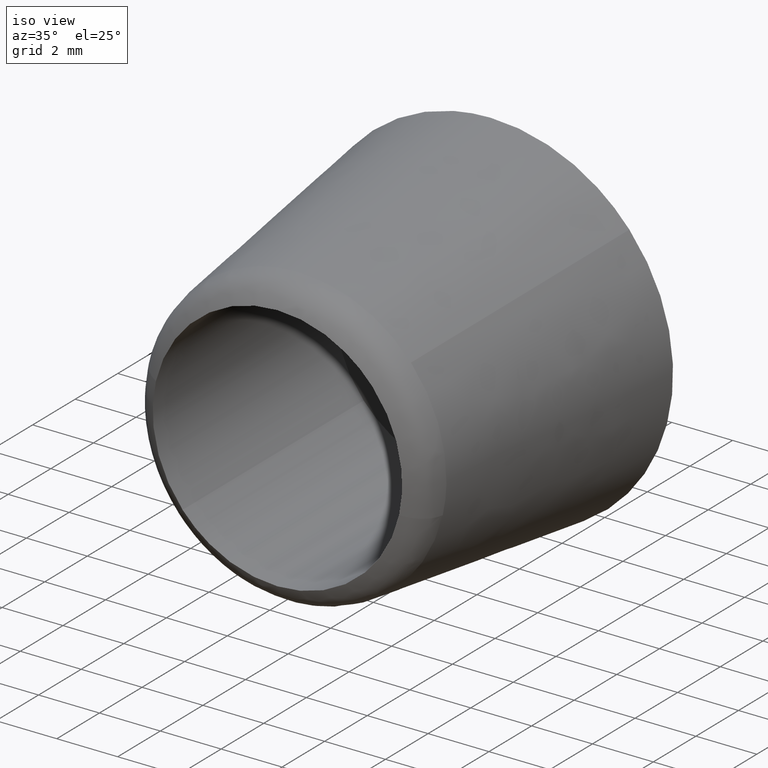
[diagram: clean part render]
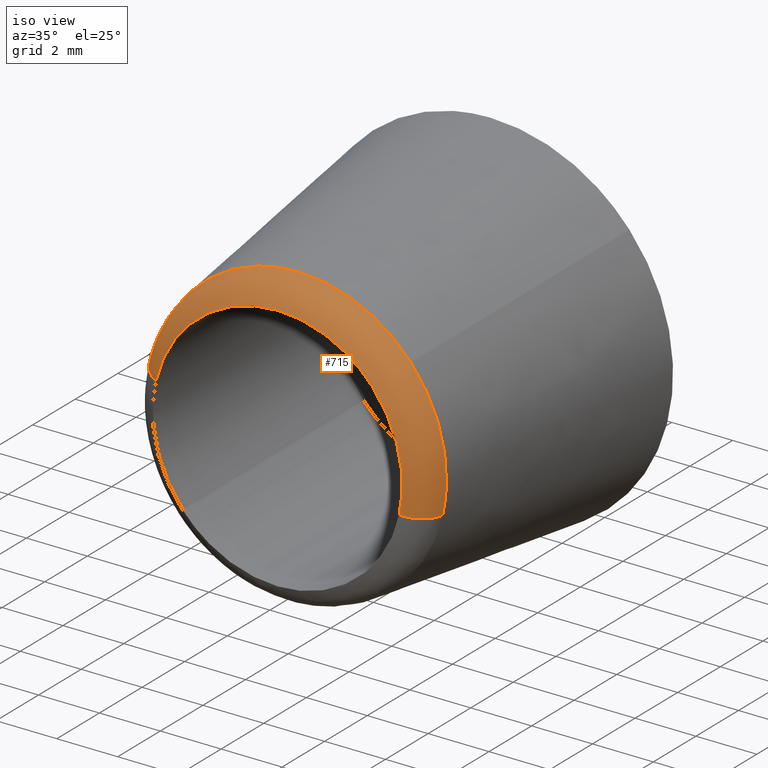
[diagram: same view with one face highlighted and labeled with its STEP entity id]
A machine part, iso view. The second image highlights one B-rep face of the part: STEP entity #715.
In plain terms, the highlighted face is a freeform B-spline surface patch.
Its self-contained STEP definition (entity closure, byte-faithful):
#252=CARTESIAN_POINT('',(3.704671224964666,-7.524284922881888,3.164087242810569));
#253=VERTEX_POINT('',#252);
#254=CARTESIAN_POINT('',(4.747861204940968,-7.524282790642049,-1.092636051415756));
#255=VERTEX_POINT('',#254);
#256=CARTESIAN_POINT('',(3.704671224964665,-7.524284922881888,3.164087242810569));
#257=CARTESIAN_POINT('',(4.871964522502872,-7.524284143187063,1.797362154721066));
#258=CARTESIAN_POINT('',(4.871964603095937,-7.524283295292181,-0.000000040679555));
#259=CARTESIAN_POINT('',(4.871964627908664,-7.524283034245102,-0.553365984550682));
#260=CARTESIAN_POINT('',(4.747861204940968,-7.524282790642049,-1.092636051415756));
#268=(BOUNDED_CURVE()B_SPLINE_CURVE(2,(#256,#257,#258,#259,#260),.UNSPECIFIED.,.F.,.U.)B_SPLINE_CURVE_WITH_KNOTS((3,2,3),(0.136856859794303,0.250000000000000,0.288352803394359),.UNSPECIFIED.)CURVE()GEOMETRIC_REPRESENTATION_ITEM()RATIONAL_B_SPLINE_CURVE((0.854871036338518,0.867444565913966,1.0,0.955066895853227,0.923920275780370))REPRESENTATION_ITEM(''));
#269=EDGE_CURVE('',#253,#255,#268,.T.);
#366=CARTESIAN_POINT('',(0.0,-7.524282794195230,4.871964650725590));
#367=VERTEX_POINT('',#366);
#368=CARTESIAN_POINT('',(0.0,-7.524282794195230,4.871964650725590));
#369=CARTESIAN_POINT('',(2.246006779741699,-7.524283858538559,4.871964564321126));
#370=CARTESIAN_POINT('',(3.704671224964665,-7.524284922881888,3.164087242810569));
#378=(BOUNDED_CURVE()B_SPLINE_CURVE(2,(#368,#369,#370),.UNSPECIFIED.,.F.,.U.)B_SPLINE_CURVE_WITH_KNOTS((3,3),(0.0,0.136856859794303),.UNSPECIFIED.)CURVE()GEOMETRIC_REPRESENTATION_ITEM()RATIONAL_B_SPLINE_CURVE((1.0,0.839662215272581,0.854871036338518))REPRESENTATION_ITEM(''));
#379=EDGE_CURVE('',#367,#253,#378,.T.);
#413=CARTESIAN_POINT('',(-4.747861204940969,-7.524282790642049,1.092636051415755));
#414=VERTEX_POINT('',#413);
#430=CARTESIAN_POINT('',(-4.747861204940969,-7.524282790642049,1.092636051415755));
#431=CARTESIAN_POINT('',(-3.878115755007902,-7.524282794195229,4.871964650725589));
#432=CARTESIAN_POINT('',(0.0,-7.524282794195230,4.871964650725590));
#440=(BOUNDED_CURVE()B_SPLINE_CURVE(2,(#430,#431,#432),.UNSPECIFIED.,.F.,.U.)B_SPLINE_CURVE_WITH_KNOTS((3,3),(0.788352803394359,1.0),.UNSPECIFIED.)CURVE()GEOMETRIC_REPRESENTATION_ITEM()RATIONAL_B_SPLINE_CURVE((0.923920275780370,0.752039885333320,1.0))REPRESENTATION_ITEM(''));
#441=EDGE_CURVE('',#414,#367,#440,.T.);
#464=CARTESIAN_POINT('',(3.117664501935782,-8.500000000000000,2.662736947835723));
#465=VERTEX_POINT('',#464);
#466=CARTESIAN_POINT('',(3.995560178538304,-8.499999999954829,-0.919510119940747));
#467=VERTEX_POINT('',#466);
#468=CARTESIAN_POINT('',(3.117664501935783,-8.500000000000000,2.662736947835723));
#469=CARTESIAN_POINT('',(4.100000000000001,-8.500000000000000,1.512569780971512));
#470=CARTESIAN_POINT('',(4.100000000000001,-8.500000000000000,0.0));
#471=CARTESIAN_POINT('',(4.100000000000001,-8.500000000000000,-0.465686303189211));
#472=CARTESIAN_POINT('',(3.995560178538303,-8.499999999954829,-0.919510119940747));
#480=(BOUNDED_CURVE()B_SPLINE_CURVE(2,(#468,#469,#470,#471,#472),.UNSPECIFIED.,.F.,.U.)B_SPLINE_CURVE_WITH_KNOTS((3,2,3),(0.136856843528716,0.250000000000000,0.288352912383625),.UNSPECIFIED.)CURVE()GEOMETRIC_REPRESENTATION_ITEM()RATIONAL_B_SPLINE_CURVE((0.854871032723351,0.867444546857646,1.0,0.955066768164358,0.923920098758361))REPRESENTATION_ITEM(''));
#481=EDGE_CURVE('',#465,#467,#480,.T.);
#578=CARTESIAN_POINT('',(0.0,-8.500000000000000,4.100000000000001));
#579=VERTEX_POINT('',#578);
#580=CARTESIAN_POINT('',(0.0,-8.500000000000000,4.100000000000001));
#581=CARTESIAN_POINT('',(1.890125969388039,-8.500000000000002,4.100000000000000));
#582=CARTESIAN_POINT('',(3.117664501935783,-8.500000000000000,2.662736947835723));
#590=(BOUNDED_CURVE()B_SPLINE_CURVE(2,(#580,#581,#582),.UNSPECIFIED.,.F.,.U.)B_SPLINE_CURVE_WITH_KNOTS((3,3),(0.0,0.136856843528716),.UNSPECIFIED.)CURVE()GEOMETRIC_REPRESENTATION_ITEM()RATIONAL_B_SPLINE_CURVE((1.0,0.839662234328901,0.854871032723351))REPRESENTATION_ITEM(''));
#591=EDGE_CURVE('',#579,#465,#590,.T.);
#593=CARTESIAN_POINT('',(-3.995560178538303,-8.499999999954829,0.919510119940747));
#594=VERTEX_POINT('',#593);
#595=CARTESIAN_POINT('',(-3.995560178538302,-8.499999999954829,0.919510119940747));
#596=CARTESIAN_POINT('',(-3.263624604808229,-8.500000000000002,4.100000000000001));
#597=CARTESIAN_POINT('',(0.0,-8.500000000000000,4.100000000000001));
#605=(BOUNDED_CURVE()B_SPLINE_CURVE(2,(#595,#596,#597),.UNSPECIFIED.,.F.,.U.)B_SPLINE_CURVE_WITH_KNOTS((3,3),(0.788352912383625,1.0),.UNSPECIFIED.)CURVE()GEOMETRIC_REPRESENTATION_ITEM()RATIONAL_B_SPLINE_CURVE((0.923920098758361,0.752040013022189,1.0))REPRESENTATION_ITEM(''));
#606=EDGE_CURVE('',#594,#579,#605,.T.);
#658=CARTESIAN_POINT('',(-3.938765705699540,-8.520014010651194,0.906439839357839));
#659=CARTESIAN_POINT('',(-3.032325866341702,-8.520014010651192,4.845205545057381));
#660=CARTESIAN_POINT('',(0.906439839357839,-8.520014010651194,3.938765705699542));
#661=CARTESIAN_POINT('',(4.845205545057381,-8.520014010651192,3.032325866341702));
#662=CARTESIAN_POINT('',(3.938765705699542,-8.520014010651194,-0.906439839357839));
#663=CARTESIAN_POINT('',(-4.695963164774303,-8.275296623605327,1.080695937447835));
#664=CARTESIAN_POINT('',(-3.615267227326469,-8.275296623605327,5.776659102222140));
#665=CARTESIAN_POINT('',(1.080695937447835,-8.275296623605327,4.695963164774303));
#666=CARTESIAN_POINT('',(5.776659102222140,-8.275296623605327,3.615267227326469));
#667=CARTESIAN_POINT('',(4.695963164774303,-8.275296623605327,-1.080695937447835));
#668=CARTESIAN_POINT('',(-4.753784909147066,-7.462843943652347,1.094002627054885));
#669=CARTESIAN_POINT('',(-3.659782282092181,-7.462843943652349,5.847787536201951));
#670=CARTESIAN_POINT('',(1.094002627054885,-7.462843943652347,4.753784909147066));
#671=CARTESIAN_POINT('',(5.847787536201951,-7.462843943652349,3.659782282092181));
#672=CARTESIAN_POINT('',(4.753784909147067,-7.462843943652347,-1.094002627054885));
#680=(BOUNDED_SURFACE()B_SPLINE_SURFACE(2,2,((#658,#663,#668),(#659,#664,#669),(#660,#665,#670),(#661,#666,#671),(#662,#667,#672)),.UNSPECIFIED.,.F.,.F.,.U.)B_SPLINE_SURFACE_WITH_KNOTS((3,2,3),(3,3),(0.0,8.082207836271738,16.164415672543480),(0.0,1.475319972099380),.UNSPECIFIED.)GEOMETRIC_REPRESENTATION_ITEM()RATIONAL_B_SPLINE_SURFACE(((0.922521264708938,0.762499442104284,0.920668531682852),(0.652321042064480,0.539168526162898,0.651010961978007),(0.922521264708938,0.762499442104284,0.920668531682852),(0.652321042064480,0.539168526162898,0.651010961978007),(0.922521264708938,0.762499442104284,0.920668531682852)))REPRESENTATION_ITEM('')SURFACE());
#681=ORIENTED_EDGE('',*,*,#441,.F.);
#682=CARTESIAN_POINT('',(-3.995560178538303,-8.499999999954829,0.919510119940747));
#683=CARTESIAN_POINT('',(-4.659928070685239,-8.246132740432993,1.072401406322850));
#684=CARTESIAN_POINT('',(-4.747861204940969,-7.524282790642049,1.092636051415755));
#692=(BOUNDED_CURVE()B_SPLINE_CURVE(2,(#682,#683,#684),.UNSPECIFIED.,.F.,.U.)B_SPLINE_CURVE_WITH_KNOTS((3,3),(-1.649330415106230,-0.358933609606277),.UNSPECIFIED.)CURVE()GEOMETRIC_REPRESENTATION_ITEM()RATIONAL_B_SPLINE_CURVE((0.908643260048370,0.776293288692988,0.906958842672355))REPRESENTATION_ITEM(''));
#693=EDGE_CURVE('',#594,#414,#692,.T.);
#694=ORIENTED_EDGE('',*,*,#693,.F.);
#695=ORIENTED_EDGE('',*,*,#606,.T.);
#696=ORIENTED_EDGE('',*,*,#591,.T.);
#697=ORIENTED_EDGE('',*,*,#481,.T.);
#698=CARTESIAN_POINT('',(3.995560178538304,-8.499999999954829,-0.919510119940747));
#699=CARTESIAN_POINT('',(4.659928070685238,-8.246132740432991,-1.072401406322851));
#700=CARTESIAN_POINT('',(4.747861204940968,-7.524282790642049,-1.092636051415756));
#708=(BOUNDED_CURVE()B_SPLINE_CURVE(2,(#698,#699,#700),.UNSPECIFIED.,.F.,.U.)B_SPLINE_CURVE_WITH_KNOTS((3,3),(-1.649330415106229,-0.358933609606277),.UNSPECIFIED.)CURVE()GEOMETRIC_REPRESENTATION_ITEM()RATIONAL_B_SPLINE_CURVE((0.908643260048370,0.776293288692988,0.906958842672355))REPRESENTATION_ITEM(''));
#709=EDGE_CURVE('',#467,#255,#708,.T.);
#710=ORIENTED_EDGE('',*,*,#709,.T.);
#711=ORIENTED_EDGE('',*,*,#269,.F.);
#712=ORIENTED_EDGE('',*,*,#379,.F.);
#713=EDGE_LOOP('',(#681,#694,#695,#696,#697,#710,#711,#712));
#714=FACE_OUTER_BOUND('',#713,.T.);
#715=ADVANCED_FACE('',(#714),#680,.T.);